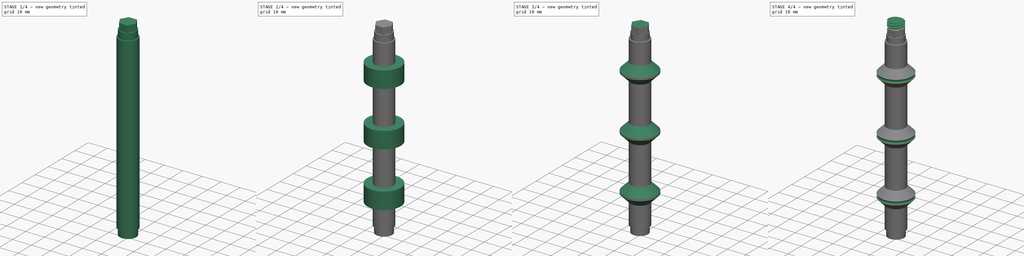
[diagram: build sequence overview — one tinted view per stage of 4, left to right]
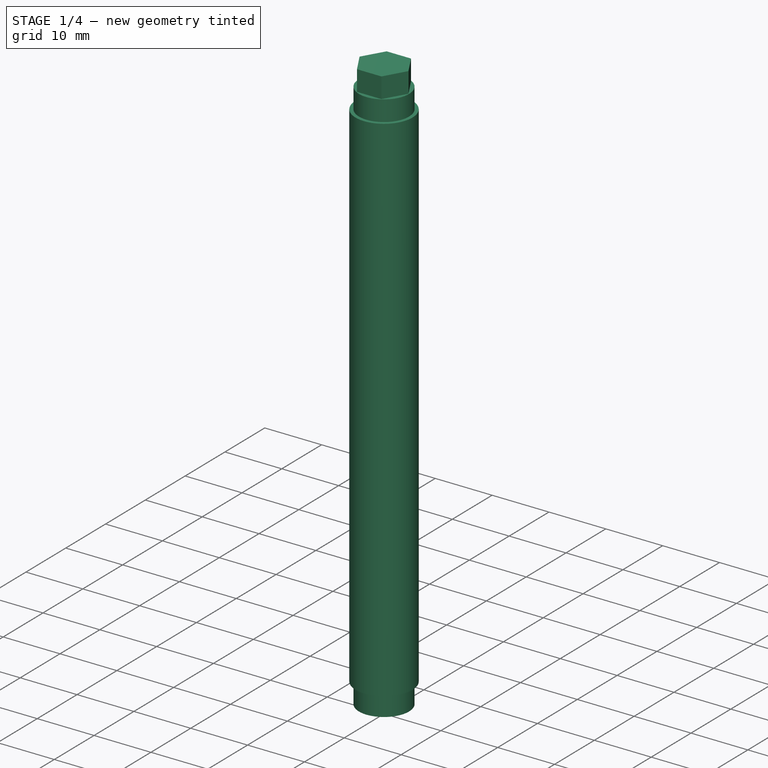
[diagram: stage 1 of 4 — iso view after this stage's code; geometry added in this stage tinted green]
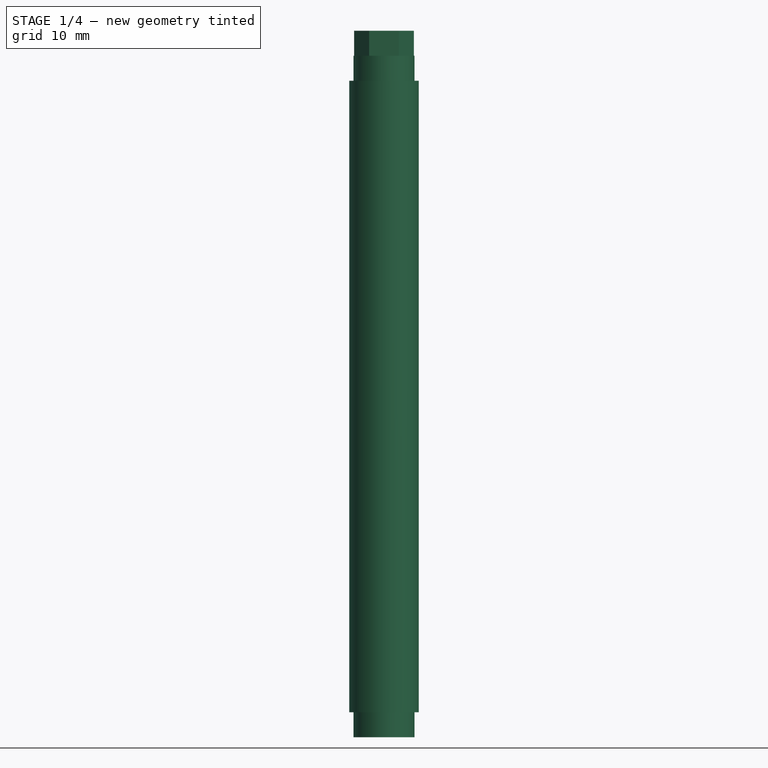
[diagram: stage 1 of 4 — front view after this stage's code; geometry added in this stage tinted green]
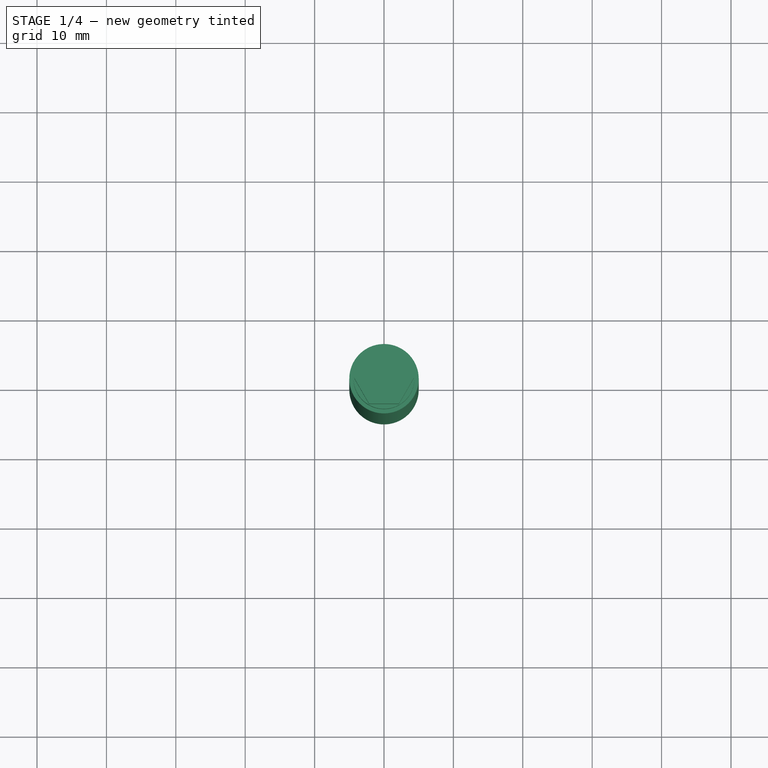
[diagram: stage 1 of 4 — top view after this stage's code; geometry added in this stage tinted green]
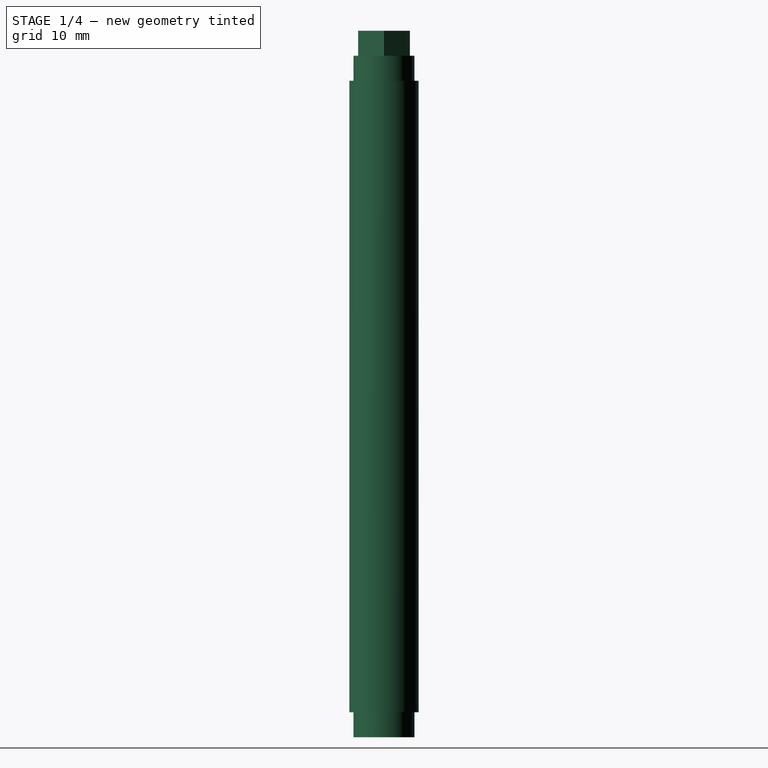
[diagram: stage 1 of 4 — right view after this stage's code; geometry added in this stage tinted green]
FCSTD DOCUMENT  (FreeCAD 0.20R29603 (Git))
Label: shaft
License: All rights reserved
LicenseURL: http://en.wikipedia.org/wiki/All_rights_reserved
objects: PartDesign::AdditiveCylinder×5, PartDesign::Chamfer×3, PartDesign::SubtractiveTorus×3, Sketcher::SketchObject×1, PartDesign::Pad×1, PartDesign::AdditivePrism×1, Part::FeaturePython×1, PartDesign::Body×1
note: 29 computed .brp shape members not serialized (recipe doc carries the construction recipe); baked Part::Feature solids carry a one-line shape summary decoded from their .brp

FEATURE [Sketcher::SketchObject] Sketch
  FullyConstrained = true
  MapMode = 5
  Support = -> [XY_Plane]
  sketch-geometry (1):
    g0: Circle CenterX=0 CenterY=0 CenterZ=0 NormalX=0 NormalY=0 NormalZ=1 AngleXU=0 Radius=5
  constraints (2):
    c: Coincident(g0,g-1)
    c: Diameter(g0) = 10
FEATURE [PartDesign::Pad] Pad
  Direction = (0,0,1)
  Length = 91
  Length2 = 10
  Profile = -> Sketch
  ReferenceAxis = -> Sketch [N_Axis]
  Type = 0
FEATURE [PartDesign::AdditiveCylinder] Cylinder
  Angle = 360
  AttacherType = Attacher::AttachEngine3D
  BaseFeature = -> Pad
  FirstAngle = 0
  Height = 3.6
  MapMode = 5
  Placement = pos=(0,0,91) rot=(0,0,1;0rad)
  Radius = 4.4
  Refine = true
  SecondAngle = 0
  Support = -> [Pad]
FEATURE [PartDesign::AdditivePrism] Prism
  AttacherType = Attacher::AttachEngine3D
  BaseFeature = -> Cylinder
  Circumradius = 4.3
  FirstAngle = 0
  Height = 3.6
  MapMode = 5
  Placement = pos=(0,0,94.6) rot=(0,0,1;0rad)
  Polygon = 6
  SecondAngle = 0
  Support = -> [Cylinder]
FEATURE [PartDesign::AdditiveCylinder] Cylinder010
  Angle = 360
  AttacherType = Attacher::AttachEngine3D
  BaseFeature = -> Prism
  FirstAngle = 0
  Height = 3.6
  MapMode = 5
  Placement = pos=(0,0,0) rot=(1,0,0;3.14159rad)
  Radius = 4.4
  SecondAngle = 0
  Support = -> [Pad]
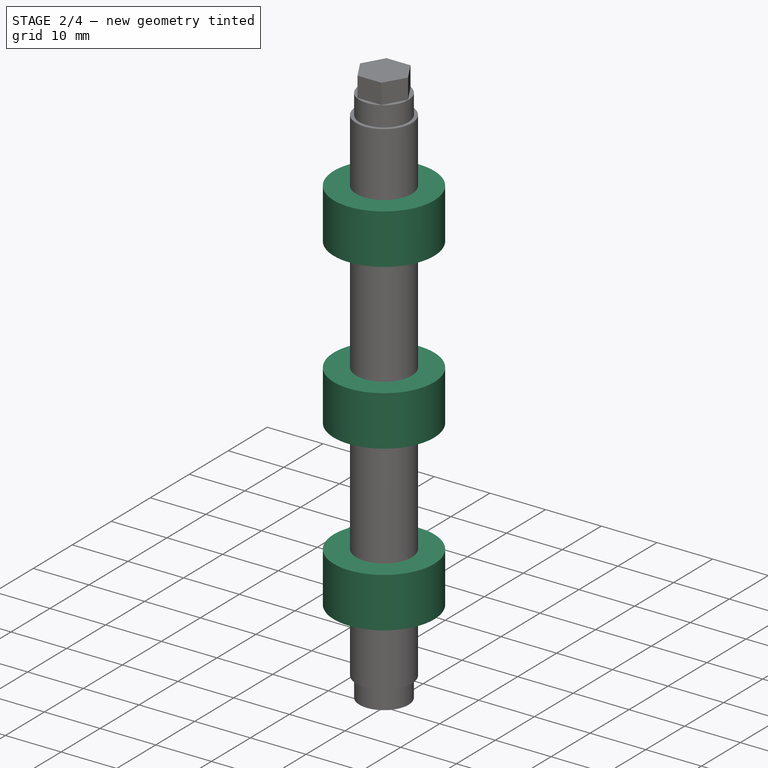
[diagram: stage 2 of 4 — iso view after this stage's code; geometry added in this stage tinted green]
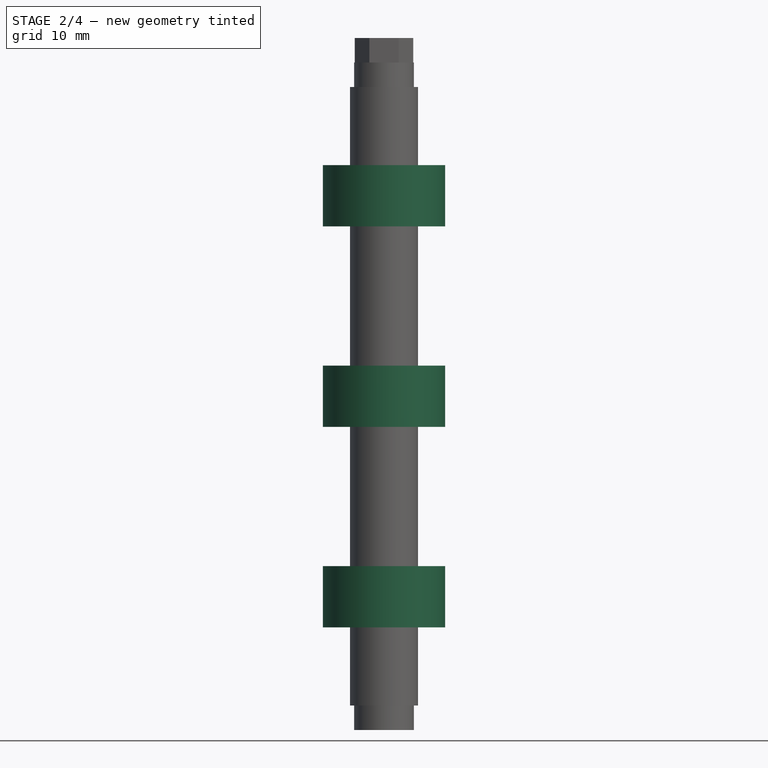
[diagram: stage 2 of 4 — front view after this stage's code; geometry added in this stage tinted green]
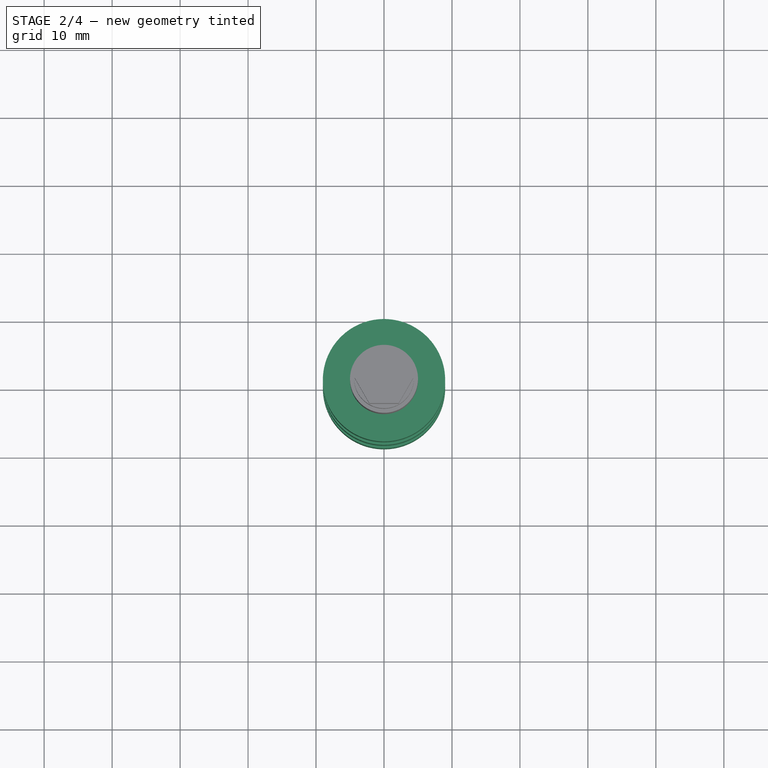
[diagram: stage 2 of 4 — top view after this stage's code; geometry added in this stage tinted green]
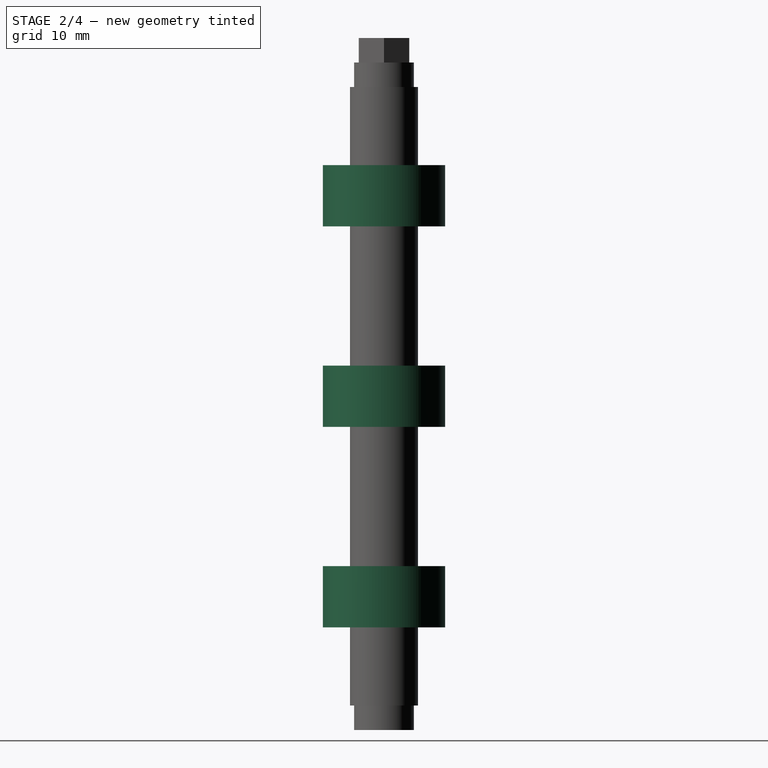
[diagram: stage 2 of 4 — right view after this stage's code; geometry added in this stage tinted green]
FEATURE [PartDesign::AdditiveCylinder] Cylinder011  label="Middle roller"
  Angle = 360
  AttacherType = Attacher::AttachEngine3D
  AttachmentOffset = pos=(0,0,-4.5) rot=(0,0,1;0rad)
  BaseFeature = -> Cylinder010
  FirstAngle = 0
  Height = 9
  MapMode = 45
  Placement = pos=(2.7e-15,-1e-16,41) rot=(0,0,1;0rad)
  Radius = 9
  SecondAngle = 0
  Support = -> [Pad]
FEATURE [PartDesign::AdditiveCylinder] Cylinder012
  Angle = 360
  AttacherType = Attacher::AttachEngine3D
  BaseFeature = -> Cylinder011
  FirstAngle = 0
  Height = 9
  Placement = pos=(3e-15,-9e-15,70.5) rot=(0,0,1;0rad)
  Radius = 9
  SecondAngle = 0
  Support = -> [Cylinder]
FEATURE [PartDesign::AdditiveCylinder] Cylinder013
  Angle = 360
  AttacherType = Attacher::AttachEngine3D
  AttachmentOffset = pos=(0,0,11.5) rot=(0,0,1;0rad)
  BaseFeature = -> Cylinder012
  FirstAngle = 0
  Height = 9
  MapMode = 2
  Placement = pos=(0,0,11.5) rot=(0,0,1;0rad)
  Radius = 9
  SecondAngle = 0
  Support = -> [XY_Plane]
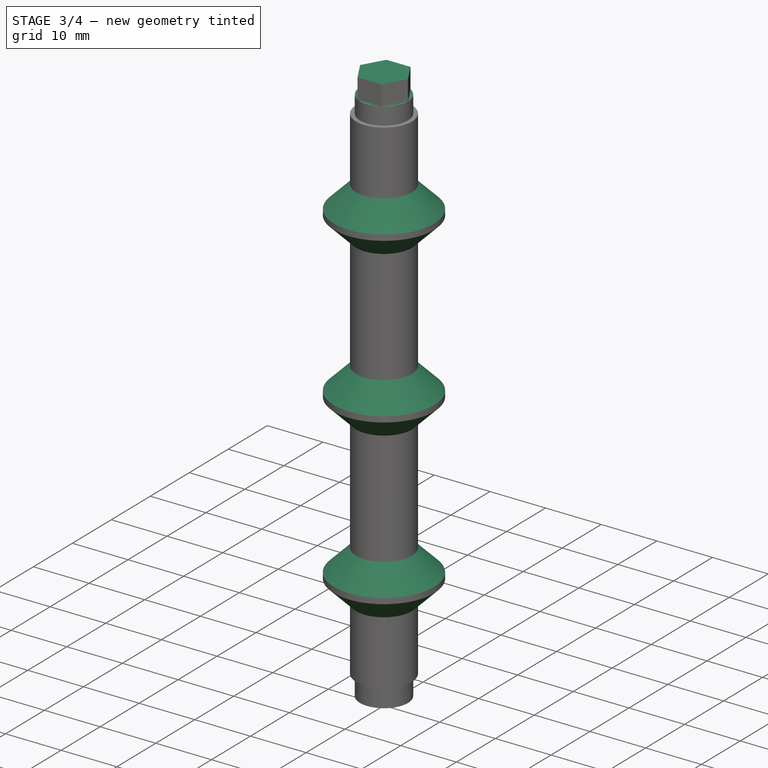
[diagram: stage 3 of 4 — iso view after this stage's code; geometry added in this stage tinted green]
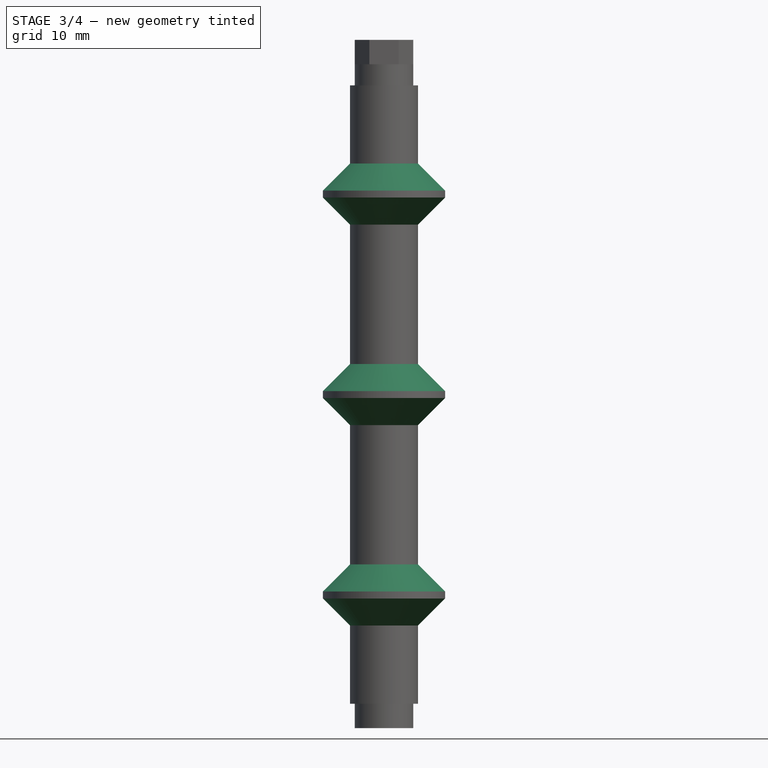
[diagram: stage 3 of 4 — front view after this stage's code; geometry added in this stage tinted green]
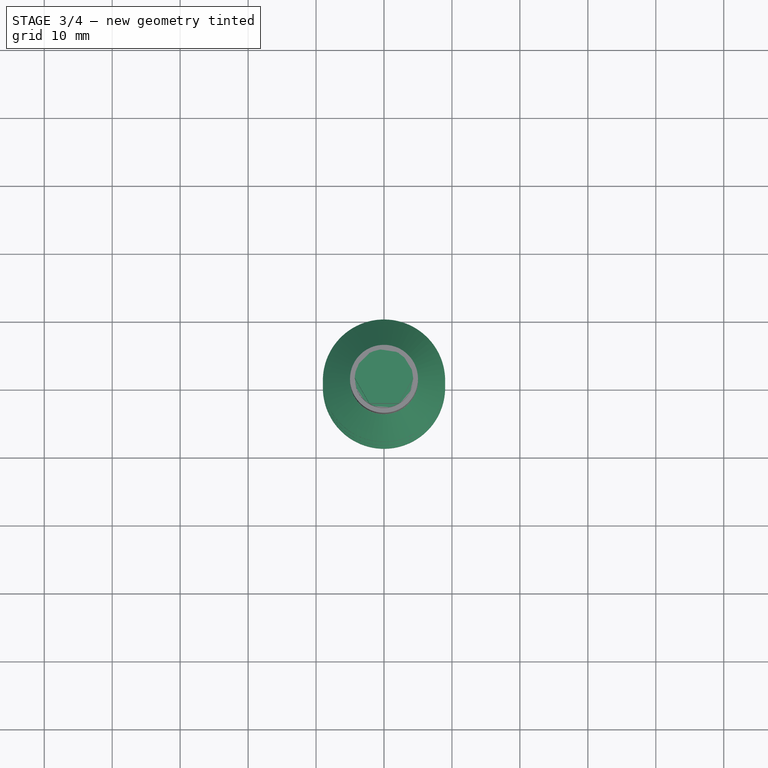
[diagram: stage 3 of 4 — top view after this stage's code; geometry added in this stage tinted green]
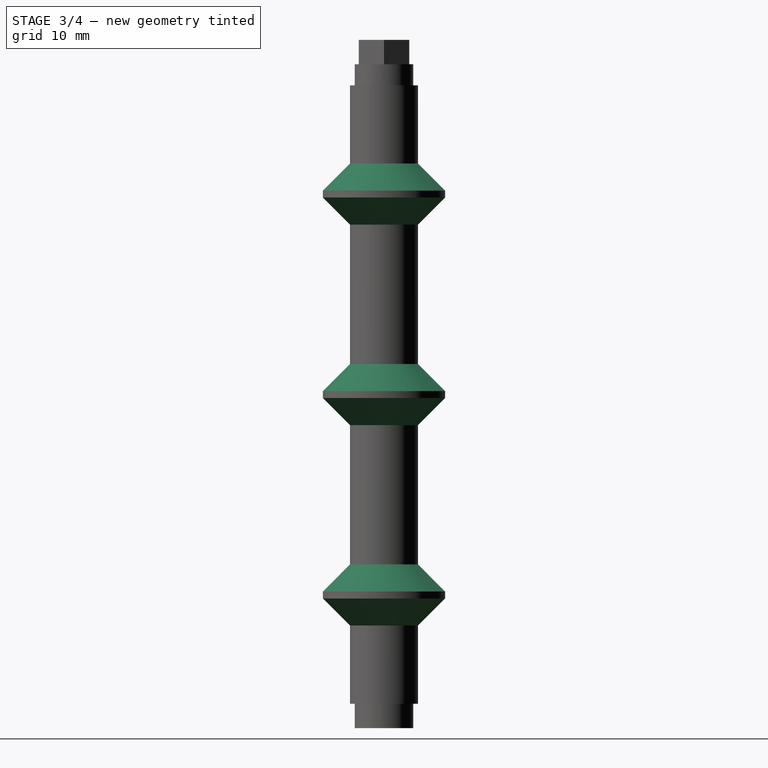
[diagram: stage 3 of 4 — right view after this stage's code; geometry added in this stage tinted green]
FEATURE [PartDesign::Chamfer] Chamfer
  Angle = 45
  Base = -> Cylinder013 [Face10]
  BaseFeature = -> Cylinder013
  ChamferType = 0
  FlipDirection = false
  Placement = pos=(0,0,11.5) rot=(0,0,1;0rad)
  Size = 3.99
  Size2 = 1
  SupportTransform = false
  UseAllEdges = false
FEATURE [PartDesign::Chamfer] Chamfer001
  Angle = 45
  Base = -> Chamfer [Face14]
  BaseFeature = -> Chamfer
  ChamferType = 0
  FlipDirection = false
  Placement = pos=(0,0,11.5) rot=(0,0,1;0rad)
  Size = 3.99
  Size2 = 1
  SupportTransform = false
  UseAllEdges = false
FEATURE [PartDesign::Chamfer] Chamfer002
  Angle = 45
  Base = -> Chamfer001 [Face29]
  BaseFeature = -> Chamfer001
  ChamferType = 0
  FlipDirection = false
  Placement = pos=(0,0,11.5) rot=(0,0,1;0rad)
  Size = 3.99
  Size2 = 1
  SupportTransform = false
  UseAllEdges = false
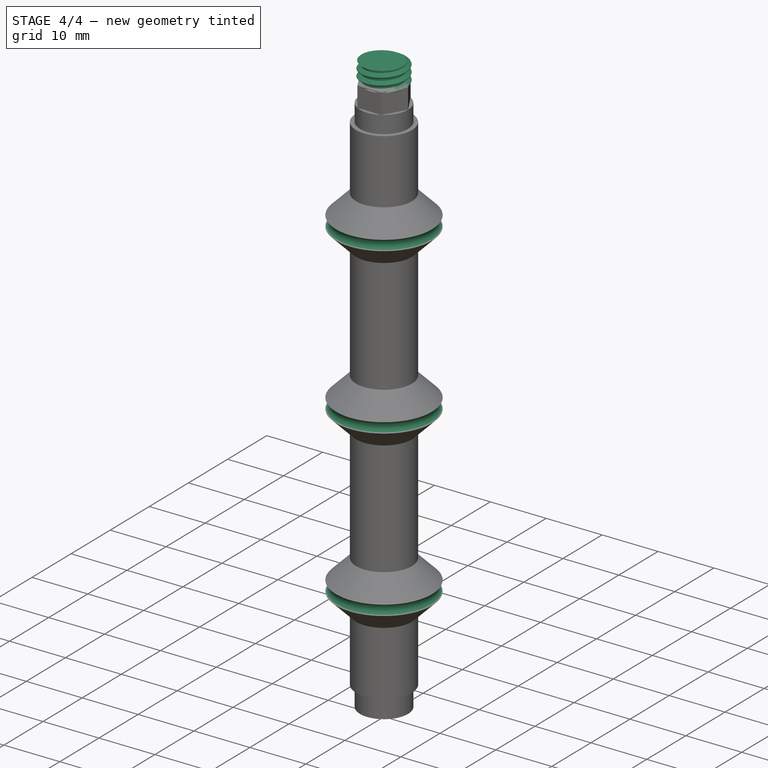
[diagram: stage 4 of 4 — iso view after this stage's code; geometry added in this stage tinted green]
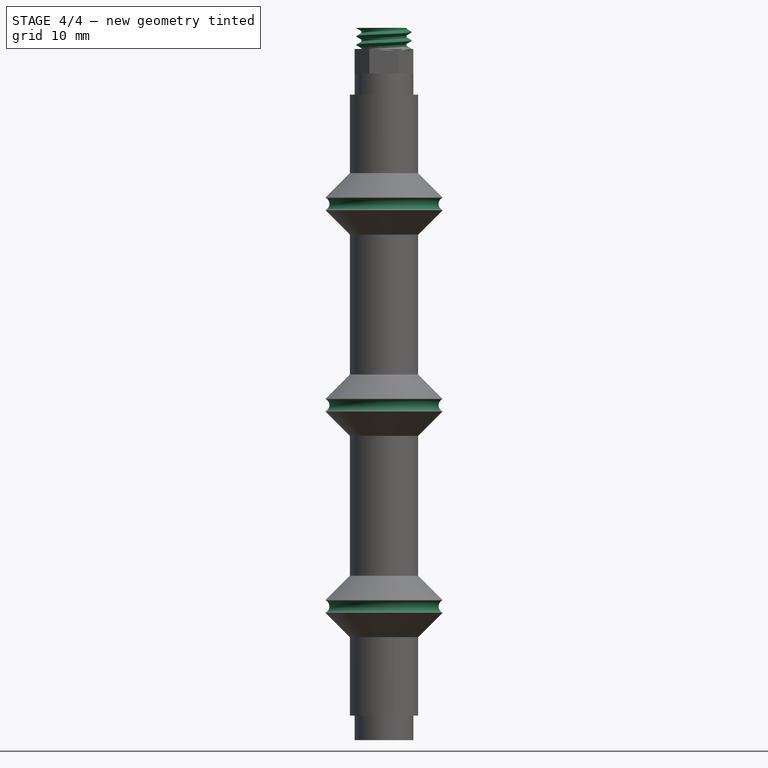
[diagram: stage 4 of 4 — front view after this stage's code; geometry added in this stage tinted green]
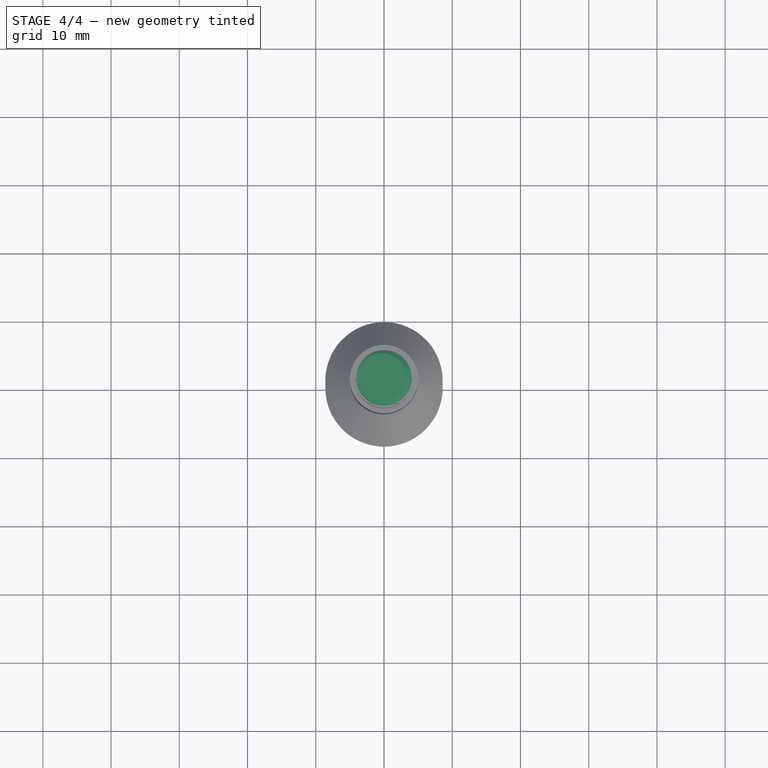
[diagram: stage 4 of 4 — top view after this stage's code; geometry added in this stage tinted green]
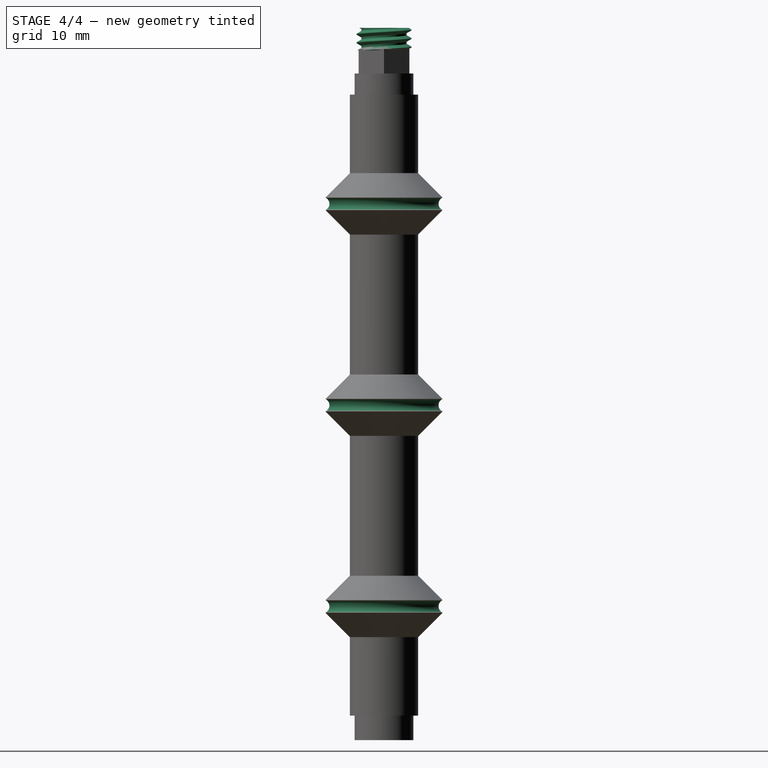
[diagram: stage 4 of 4 — right view after this stage's code; geometry added in this stage tinted green]
FEATURE [Part::FeaturePython] ScrewTap  label="M8x3.3-ScrewTap"  # Fasteners workbench fastener (typed FeaturePython)
  Placement = pos=(0,0,100.8) rot=(0,0,1;0rad)
  diameter = 9
  diameterCustom = 6
  invert = false
  leftHanded = false
  length = 3.3
  matchOuter = false
  offset = 0
  pitchCustom = 1
  thread = true
  type = 2
FEATURE [PartDesign::SubtractiveTorus] Torus
  Angle1 = -180
  Angle2 = 180
  Angle3 = 360
  AttacherType = Attacher::AttachEngine3D
  BaseFeature = -> Chamfer002
  MapMode = 45
  Placement = pos=(7e-16,-1e-16,45.5) rot=(0,0,1;0rad)
  Radius1 = 9
  Radius2 = 1
  Support = -> [Chamfer002]
FEATURE [PartDesign::SubtractiveTorus] Torus001
  Angle1 = -180
  Angle2 = 180
  Angle3 = 360
  AttacherType = Attacher::AttachEngine3D
  BaseFeature = -> Torus
  MapMode = 45
  Placement = pos=(-3.59e-14,-9.2e-15,75) rot=(0,0,1;0rad)
  Radius1 = 9
  Radius2 = 1
  Support = -> [Torus]
FEATURE [PartDesign::SubtractiveTorus] Torus002
  Angle1 = -180
  Angle2 = 180
  Angle3 = 360
  AttacherType = Attacher::AttachEngine3D
  BaseFeature = -> Torus001
  MapMode = 45
  Placement = pos=(3.66e-14,-1e-16,16) rot=(0,0,1;0rad)
  Radius1 = 9
  Radius2 = 1
  Support = -> [Torus001]
FEATURE [PartDesign::Body] Body
  Group = -> [Sketch,Pad,Cylinder,Prism,Cylinder010,Cylinder011,Cylinder012,Cylinder013,Chamfer,Chamfer001,Chamfer002,Torus,Torus001,Torus002]
  Origin = -> Origin
  Tip = -> Torus002
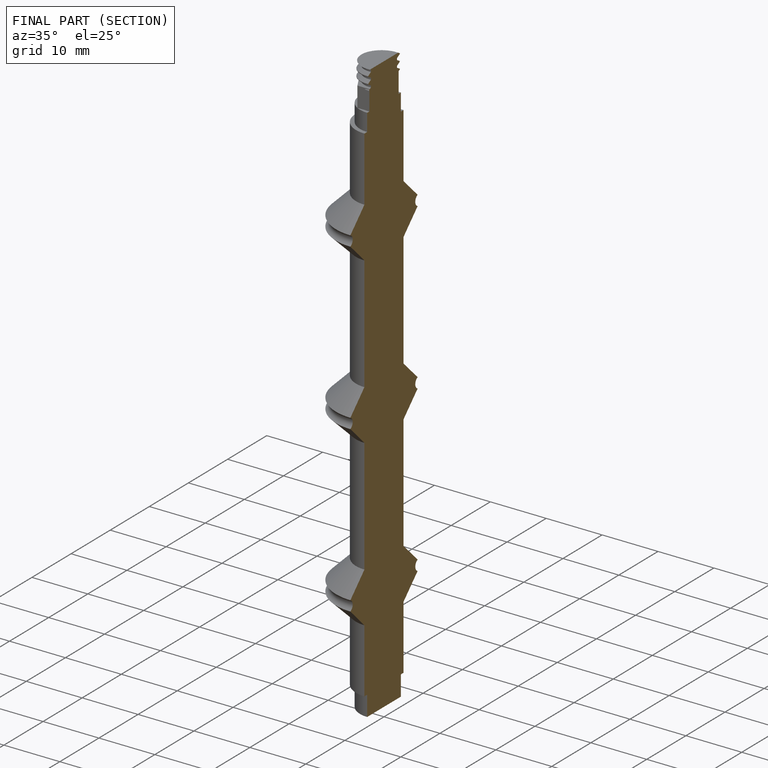
[diagram: finished part — half-section view (interior)]
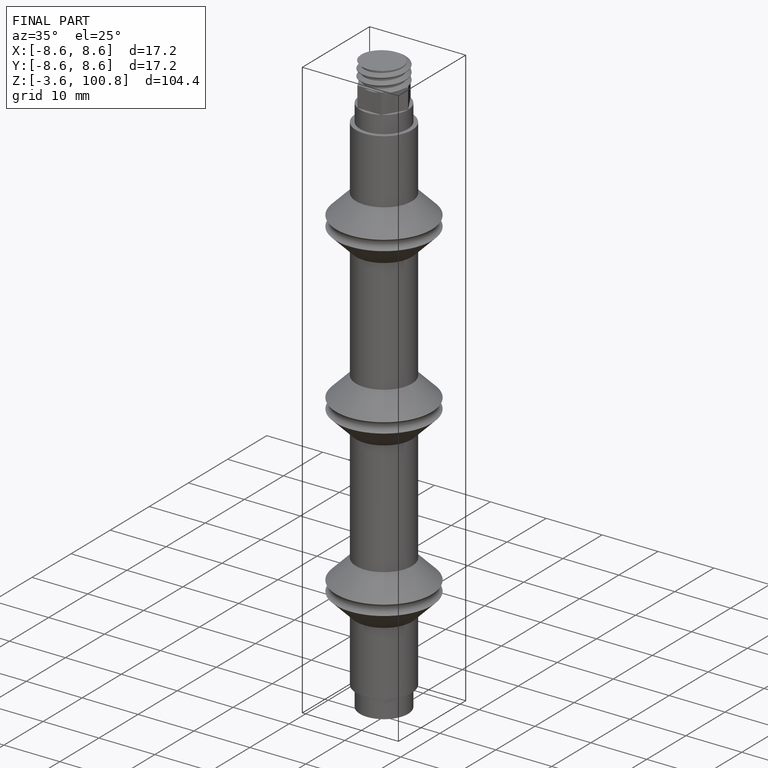
[diagram: finished part — iso view with bounding-box wireframe]
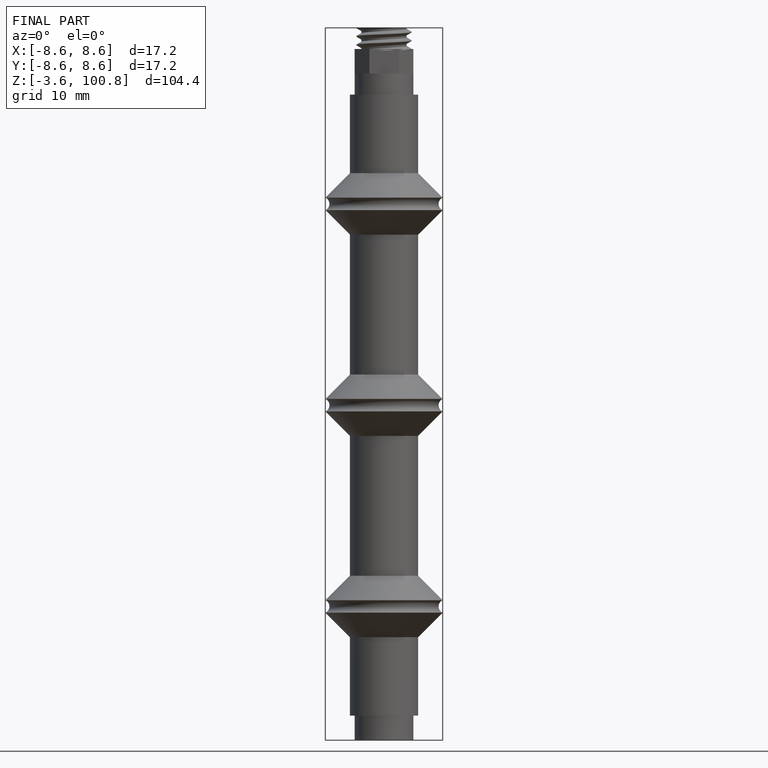
[diagram: finished part — front view with bounding-box wireframe]
